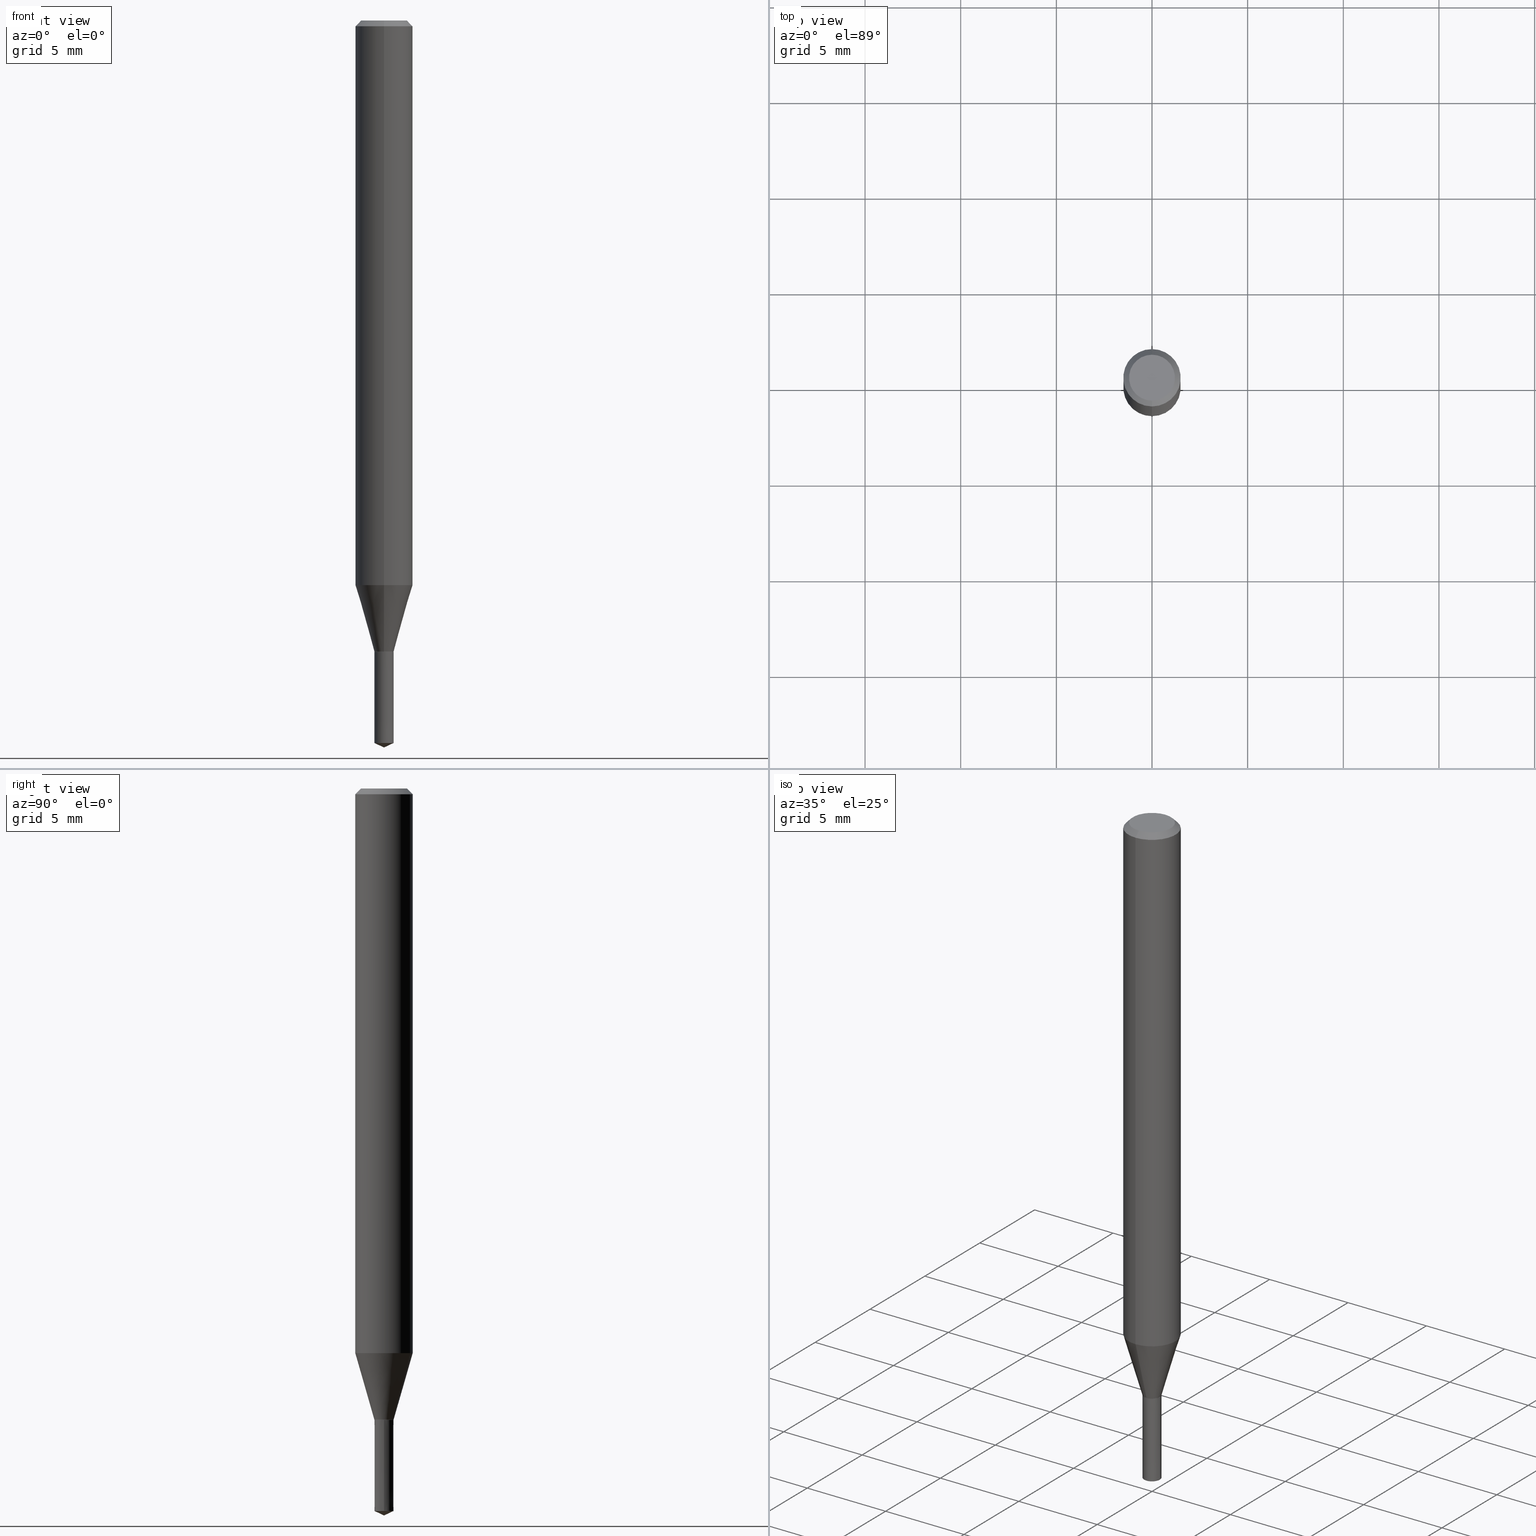
[diagram: canonical four-view strip — front | top / right | iso, engineering-drawing reading convention]
A machine part, canonical four-view strip (front | top / right | iso — engineering-drawing reading convention). The complete STEP part file that produces these views, byte-faithful:
ISO-10303-21;
HEADER;
FILE_DESCRIPTION(('no description'),'unknown implementation level');
FILE_NAME('UTDSX2100-050-Huellk.stp','  ',('CIMSOURCE GmbH'),('CADClick - KiM GmbH - www.kimweb.de'),'unknown preprocess','ACIS','unknown authorization');
FILE_SCHEMA(('automotive_design'));
ENDSEC;
DATA;
#1=MECHANICAL_DESIGN_GEOMETRIC_PRESENTATION_REPRESENTATION(' ',(#14,#15,#16,#17,#18,#19,#20,#21,#22,#23,#24,#25,#26,#27,#28,#29,#30,#31,#32,#33,#34,#35,#36,#37,#38,#39,#40,#41,#42,#43,#44,#45,#46,#47,#48,#49,#50,#51,#52,#53,#54,#55,#56,#57,#58,#59,#60,#61,#62,#63,#64,#65,#66,#67,#68,#69,#70,#71),#10);
#2=PRODUCT_DEFINITION_CONTEXT('',#72,'design');
#3=APPLICATION_PROTOCOL_DEFINITION('INTERNATIONAL STANDARD','automotive_design',1994,#72);
#4=PRODUCT_CATEGORY_RELATIONSHIP('NONE','NONE',#73,#74);
#5=SHAPE_DEFINITION_REPRESENTATION(#75,#76);
#6=PRODUCT_DEFINITION_CONTEXT('',#77,'design');
#7=APPLICATION_PROTOCOL_DEFINITION('INTERNATIONAL STANDARD','automotive_design',1994,#77);
#8=PRODUCT_CATEGORY_RELATIONSHIP('NONE','NONE',#78,#79);
#9=SHAPE_DEFINITION_REPRESENTATION(#80,#81);
#10= (GEOMETRIC_REPRESENTATION_CONTEXT(3)GLOBAL_UNCERTAINTY_ASSIGNED_CONTEXT((#84))GLOBAL_UNIT_ASSIGNED_CONTEXT((#86,#87,#88))REPRESENTATION_CONTEXT('NONE','WORKSPACE'));
#14=STYLED_ITEM('',(#90),#91);
#15=STYLED_ITEM('',(#92),#93);
#16=STYLED_ITEM('',(#94),#95);
#17=STYLED_ITEM('',(#96),#97);
#18=STYLED_ITEM('',(#98),#99);
#19=STYLED_ITEM('',(#100),#101);
#20=STYLED_ITEM('',(#102),#103);
#21=STYLED_ITEM('',(#104),#105);
#22=STYLED_ITEM('',(#106),#107);
#23=STYLED_ITEM('',(#108),#109);
#24=STYLED_ITEM('',(#110),#111);
#25=STYLED_ITEM('',(#112),#113);
#26=STYLED_ITEM('',(#114),#115);
#27=STYLED_ITEM('',(#116),#117);
#28=STYLED_ITEM('',(#118),#119);
#29=STYLED_ITEM('',(#120),#121);
#30=STYLED_ITEM('',(#122),#123);
#31=STYLED_ITEM('',(#124),#125);
#32=STYLED_ITEM('',(#126),#127);
#33=STYLED_ITEM('',(#128),#129);
#34=STYLED_ITEM('',(#130),#131);
#35=STYLED_ITEM('',(#132),#133);
#36=STYLED_ITEM('',(#134),#135);
#37=STYLED_ITEM('',(#136),#137);
#38=STYLED_ITEM('',(#138),#139);
#39=STYLED_ITEM('',(#140),#141);
#40=STYLED_ITEM('',(#142),#143);
#41=STYLED_ITEM('',(#144),#145);
#42=STYLED_ITEM('',(#146),#147);
#43=STYLED_ITEM('',(#148),#149);
#44=STYLED_ITEM('',(#150),#151);
#45=STYLED_ITEM('',(#152),#153);
#46=STYLED_ITEM('',(#154),#155);
#47=STYLED_ITEM('',(#156),#157);
#48=STYLED_ITEM('',(#158),#159);
#49=STYLED_ITEM('',(#160),#161);
#50=STYLED_ITEM('',(#162),#163);
#51=STYLED_ITEM('',(#164),#165);
#52=STYLED_ITEM('',(#166),#167);
#53=STYLED_ITEM('',(#168),#169);
#54=STYLED_ITEM('',(#170),#171);
#55=STYLED_ITEM('',(#172),#173);
#56=STYLED_ITEM('',(#174),#175);
#57=STYLED_ITEM('',(#176),#177);
#58=STYLED_ITEM('',(#178),#179);
#59=STYLED_ITEM('',(#180),#181);
#60=STYLED_ITEM('',(#182),#183);
#61=STYLED_ITEM('',(#184),#185);
#62=STYLED_ITEM('',(#186),#187);
#63=STYLED_ITEM('',(#188),#189);
#64=STYLED_ITEM('',(#190),#191);
#65=STYLED_ITEM('',(#192),#193);
#66=STYLED_ITEM('',(#194),#195);
#67=STYLED_ITEM('',(#196),#197);
#68=STYLED_ITEM('',(#198),#199);
#69=STYLED_ITEM('',(#200),#201);
#70=STYLED_ITEM('',(#202),#203);
#71=STYLED_ITEM('',(#204),#205);
#72=APPLICATION_CONTEXT(' ');
#73=PRODUCT_CATEGORY('part','NONE');
#74=PRODUCT_RELATED_PRODUCT_CATEGORY('detail',' ',(#206));
#75=PRODUCT_DEFINITION_SHAPE('NONE','NONE',#207);
#76=ADVANCED_BREP_SHAPE_REPRESENTATION('1',(#135,#208),#10);
#77=APPLICATION_CONTEXT(' ');
#78=PRODUCT_CATEGORY('part','NONE');
#79=PRODUCT_RELATED_PRODUCT_CATEGORY('detail',' ',(#209));
#80=PRODUCT_DEFINITION_SHAPE('NONE','NONE',#210);
#81=ADVANCED_BREP_SHAPE_REPRESENTATION('2',(#181,#211),#10);
#84=UNCERTAINTY_MEASURE_WITH_UNIT(LENGTH_MEASURE(1.0E-006),#86,'','');
#86= (CONVERSION_BASED_UNIT('MILLIMETRE',#214)LENGTH_UNIT()NAMED_UNIT(#217));
#87= (NAMED_UNIT(#219)PLANE_ANGLE_UNIT()SI_UNIT($,.RADIAN.));
#88= (NAMED_UNIT(#219)SOLID_ANGLE_UNIT()SI_UNIT($,.STERADIAN.));
#90=PRESENTATION_STYLE_ASSIGNMENT((#225));
#91=EDGE_CURVE('',#105,#153,#226,.T.);
#92=PRESENTATION_STYLE_ASSIGNMENT((#227));
#93=EDGE_CURVE('',#203,#155,#228,.T.);
#94=PRESENTATION_STYLE_ASSIGNMENT((#229));
#95=ADVANCED_FACE('',(#230),#231,.T.);
#96=PRESENTATION_STYLE_ASSIGNMENT((#232));
#97=ADVANCED_FACE('',(#233),#234,.T.);
#98=PRESENTATION_STYLE_ASSIGNMENT((#235));
#99=ADVANCED_FACE('',(#236),#237,.T.);
#100=PRESENTATION_STYLE_ASSIGNMENT((#238));
#101=EDGE_CURVE('',#197,#163,#239,.T.);
#102=PRESENTATION_STYLE_ASSIGNMENT((#240));
#103=EDGE_CURVE('',#147,#105,#241,.T.);
#104=PRESENTATION_STYLE_ASSIGNMENT((#242));
#105=VERTEX_POINT('',#243);
#106=PRESENTATION_STYLE_ASSIGNMENT((#244));
#107=ADVANCED_FACE('',(#245),#246,.T.);
#108=PRESENTATION_STYLE_ASSIGNMENT((#247));
#109=VERTEX_POINT('',#248);
#110=PRESENTATION_STYLE_ASSIGNMENT((#249));
#111=ADVANCED_FACE('',(#250),#251,.T.);
#112=PRESENTATION_STYLE_ASSIGNMENT((#252));
#113=ADVANCED_FACE('',(#253),#254,.T.);
#114=PRESENTATION_STYLE_ASSIGNMENT((#255));
#115=ADVANCED_FACE('',(#256),#257,.T.);
#116=PRESENTATION_STYLE_ASSIGNMENT((#258));
#117=EDGE_CURVE('',#197,#185,#259,.T.);
#118=PRESENTATION_STYLE_ASSIGNMENT((#260));
#119=EDGE_CURVE('',#149,#105,#261,.T.);
#120=PRESENTATION_STYLE_ASSIGNMENT((#262));
#121=EDGE_CURVE('',#145,#179,#263,.T.);
#122=PRESENTATION_STYLE_ASSIGNMENT((#264));
#123=ADVANCED_FACE('',(#265),#266,.T.);
#124=PRESENTATION_STYLE_ASSIGNMENT((#267));
#125=ADVANCED_FACE('',(#268),#269,.T.);
#126=PRESENTATION_STYLE_ASSIGNMENT((#270));
#127=EDGE_CURVE('',#149,#109,#271,.T.);
#128=PRESENTATION_STYLE_ASSIGNMENT((#272));
#129=ADVANCED_FACE('',(#273),#274,.T.);
#130=PRESENTATION_STYLE_ASSIGNMENT((#275));
#131=EDGE_CURVE('',#175,#163,#276,.T.);
#132=PRESENTATION_STYLE_ASSIGNMENT((#277));
#133=VERTEX_POINT('',#278);
#134=PRESENTATION_STYLE_ASSIGNMENT((#279));
#135=MANIFOLD_SOLID_BREP('1',#280);
#136=PRESENTATION_STYLE_ASSIGNMENT((#281));
#137=EDGE_CURVE('',#147,#109,#282,.T.);
#138=PRESENTATION_STYLE_ASSIGNMENT((#283));
#139=EDGE_CURVE('',#179,#147,#284,.T.);
#140=PRESENTATION_STYLE_ASSIGNMENT((#285));
#141=EDGE_CURVE('',#161,#149,#286,.T.);
#142=PRESENTATION_STYLE_ASSIGNMENT((#287));
#143=EDGE_CURVE('',#163,#197,#288,.T.);
#144=PRESENTATION_STYLE_ASSIGNMENT((#289));
#145=VERTEX_POINT('',#290);
#146=PRESENTATION_STYLE_ASSIGNMENT((#291));
#147=VERTEX_POINT('',#292);
#148=PRESENTATION_STYLE_ASSIGNMENT((#293));
#149=VERTEX_POINT('',#294);
#150=PRESENTATION_STYLE_ASSIGNMENT((#295));
#151=EDGE_CURVE('',#109,#147,#296,.T.);
#152=PRESENTATION_STYLE_ASSIGNMENT((#297));
#153=VERTEX_POINT('',#298);
#154=PRESENTATION_STYLE_ASSIGNMENT((#299));
#155=VERTEX_POINT('',#300);
#156=PRESENTATION_STYLE_ASSIGNMENT((#301));
#157=EDGE_CURVE('',#175,#185,#302,.T.);
#158=PRESENTATION_STYLE_ASSIGNMENT((#303));
#159=EDGE_CURVE('',#185,#175,#304,.T.);
#160=PRESENTATION_STYLE_ASSIGNMENT((#305));
#161=VERTEX_POINT('',#306);
#162=PRESENTATION_STYLE_ASSIGNMENT((#307));
#163=VERTEX_POINT('',#308);
#164=PRESENTATION_STYLE_ASSIGNMENT((#309));
#165=EDGE_CURVE('',#153,#161,#310,.T.);
#166=PRESENTATION_STYLE_ASSIGNMENT((#311));
#167=ADVANCED_FACE('',(#312),#313,.T.);
#168=PRESENTATION_STYLE_ASSIGNMENT((#314));
#169=EDGE_CURVE('',#163,#133,#315,.T.);
#170=PRESENTATION_STYLE_ASSIGNMENT((#316));
#171=EDGE_CURVE('',#155,#203,#317,.T.);
#172=PRESENTATION_STYLE_ASSIGNMENT((#318));
#173=EDGE_CURVE('',#179,#145,#319,.T.);
#174=PRESENTATION_STYLE_ASSIGNMENT((#320));
#175=VERTEX_POINT('',#321);
#176=PRESENTATION_STYLE_ASSIGNMENT((#322));
#177=ADVANCED_FACE('',(#323),#324,.T.);
#178=PRESENTATION_STYLE_ASSIGNMENT((#325));
#179=VERTEX_POINT('',#326);
#180=PRESENTATION_STYLE_ASSIGNMENT((#327));
#181=MANIFOLD_SOLID_BREP('2',#328);
#182=PRESENTATION_STYLE_ASSIGNMENT((#329));
#183=EDGE_CURVE('',#153,#203,#330,.T.);
#184=PRESENTATION_STYLE_ASSIGNMENT((#331));
#185=VERTEX_POINT('',#332);
#186=PRESENTATION_STYLE_ASSIGNMENT((#333));
#187=EDGE_CURVE('',#133,#197,#334,.T.);
#188=PRESENTATION_STYLE_ASSIGNMENT((#335));
#189=EDGE_CURVE('',#105,#149,#336,.T.);
#190=PRESENTATION_STYLE_ASSIGNMENT((#337));
#191=EDGE_CURVE('',#155,#161,#338,.T.);
#192=PRESENTATION_STYLE_ASSIGNMENT((#339));
#193=EDGE_CURVE('',#161,#153,#340,.T.);
#194=PRESENTATION_STYLE_ASSIGNMENT((#341));
#195=ADVANCED_FACE('',(#342),#343,.T.);
#196=PRESENTATION_STYLE_ASSIGNMENT((#344));
#197=VERTEX_POINT('',#345);
#198=PRESENTATION_STYLE_ASSIGNMENT((#346));
#199=EDGE_CURVE('',#109,#145,#347,.T.);
#200=PRESENTATION_STYLE_ASSIGNMENT((#348));
#201=ADVANCED_FACE('',(#349),#350,.T.);
#202=PRESENTATION_STYLE_ASSIGNMENT((#351));
#203=VERTEX_POINT('',#352);
#204=PRESENTATION_STYLE_ASSIGNMENT((#353));
#205=ADVANCED_FACE('',(#354),#355,.T.);
#206=PRODUCT('1','1','PART-1-DESC',(#356));
#207=PRODUCT_DEFINITION('NONE','NONE',#357,#2);
#208=AXIS2_PLACEMENT_3D('',#358,#359,#360);
#209=PRODUCT('2','2','PART-2-DESC',(#361));
#210=PRODUCT_DEFINITION('NONE','NONE',#362,#6);
#211=AXIS2_PLACEMENT_3D('',#363,#364,#365);
#214=LENGTH_MEASURE_WITH_UNIT(LENGTH_MEASURE(1.0),#366);
#217=DIMENSIONAL_EXPONENTS(1.0,0.0,0.0,0.0,0.0,0.0,0.0);
#219=DIMENSIONAL_EXPONENTS(0.0,0.0,0.0,0.0,0.0,0.0,0.0);
#225=CURVE_STYLE('',#367,POSITIVE_LENGTH_MEASURE(1.0E-006),#368);
#226=LINE('',#369,#370);
#227=CURVE_STYLE('',#371,POSITIVE_LENGTH_MEASURE(1.0E-006),#372);
#228=CIRCLE('',#373,1.2);
#229=SURFACE_STYLE_USAGE(.BOTH.,#374);
#230=FACE_OUTER_BOUND('',#375,.T.);
#231=PLANE('',#376);
#232=SURFACE_STYLE_USAGE(.BOTH.,#377);
#233=FACE_OUTER_BOUND('',#378,.T.);
#234=CONICAL_SURFACE('',#379,1.0,0.279349998205856);
#235=SURFACE_STYLE_USAGE(.BOTH.,#380);
#236=FACE_OUTER_BOUND('',#381,.T.);
#237=CONICAL_SURFACE('',#382,0.25,1.13446401228084);
#238=CURVE_STYLE('',#383,POSITIVE_LENGTH_MEASURE(1.0E-006),#384);
#239=CIRCLE('',#385,0.5);
#240=CURVE_STYLE('',#386,POSITIVE_LENGTH_MEASURE(1.0E-006),#387);
#241=LINE('',#388,#389);
#242=POINT_STYLE(' ',#390,POSITIVE_LENGTH_MEASURE(1.0E-006),#391);
#243=CARTESIAN_POINT('',(1.83690953073357E-016,-1.5,-29.513));
#244=SURFACE_STYLE_USAGE(.BOTH.,#392);
#245=FACE_OUTER_BOUND('',#393,.T.);
#246=CONICAL_SURFACE('',#394,1.0,0.279349998205856);
#247=POINT_STYLE(' ',#395,POSITIVE_LENGTH_MEASURE(1.0E-006),#396);
#248=CARTESIAN_POINT('',(0.0,0.5,-32.9991339745962));
#249=SURFACE_STYLE_USAGE(.BOTH.,#397);
#250=FACE_OUTER_BOUND('',#398,.T.);
#251=CONICAL_SURFACE('',#399,0.5005,0.000209782306721776);
#252=SURFACE_STYLE_USAGE(.BOTH.,#400);
#253=FACE_OUTER_BOUND('',#401,.T.);
#254=PLANE('',#402);
#255=SURFACE_STYLE_USAGE(.BOTH.,#403);
#256=FACE_OUTER_BOUND('',#404,.T.);
#257=CONICAL_SURFACE('',#405,0.25,1.13446401228084);
#258=CURVE_STYLE('',#406,POSITIVE_LENGTH_MEASURE(1.0E-006),#407);
#259=LINE('',#408,#409);
#260=CURVE_STYLE('',#410,POSITIVE_LENGTH_MEASURE(1.0E-006),#411);
#261=CIRCLE('',#412,1.5);
#262=CURVE_STYLE('',#413,POSITIVE_LENGTH_MEASURE(1.0E-006),#414);
#263=CIRCLE('',#415,0.5005);
#264=SURFACE_STYLE_USAGE(.BOTH.,#416);
#265=FACE_OUTER_BOUND('',#417,.T.);
#266=CONICAL_SURFACE('',#418,1.35,0.785398163397447);
#267=SURFACE_STYLE_USAGE(.BOTH.,#419);
#268=FACE_OUTER_BOUND('',#420,.T.);
#269=CYLINDRICAL_SURFACE('',#421,1.5);
#270=CURVE_STYLE('',#422,POSITIVE_LENGTH_MEASURE(1.0E-006),#423);
#271=LINE('',#424,#425);
#272=SURFACE_STYLE_USAGE(.BOTH.,#426);
#273=FACE_OUTER_BOUND('',#427,.T.);
#274=CONICAL_SURFACE('',#428,0.5005,0.000209782306721776);
#275=CURVE_STYLE('',#429,POSITIVE_LENGTH_MEASURE(1.0E-006),#430);
#276=LINE('',#431,#432);
#277=POINT_STYLE(' ',#433,POSITIVE_LENGTH_MEASURE(1.0E-006),#434);
#278=CARTESIAN_POINT('',(0.0,0.0,-38.0));
#279=SURFACE_STYLE_USAGE(.BOTH.,#435);
#280=CLOSED_SHELL('',(#177,#107,#205,#123,#95,#195,#125,#97,#201,#167));
#281=CURVE_STYLE('',#436,POSITIVE_LENGTH_MEASURE(1.0E-006),#437);
#282=CIRCLE('',#438,0.5);
#283=CURVE_STYLE('',#439,POSITIVE_LENGTH_MEASURE(1.0E-006),#440);
#284=LINE('',#441,#442);
#285=CURVE_STYLE('',#443,POSITIVE_LENGTH_MEASURE(1.0E-006),#444);
#286=LINE('',#445,#446);
#287=CURVE_STYLE('',#447,POSITIVE_LENGTH_MEASURE(1.0E-006),#448);
#288=CIRCLE('',#449,0.5);
#289=POINT_STYLE(' ',#450,POSITIVE_LENGTH_MEASURE(1.0E-006),#451);
#290=CARTESIAN_POINT('',(0.0,0.5005,-33.0));
#291=POINT_STYLE(' ',#452,POSITIVE_LENGTH_MEASURE(1.0E-006),#453);
#292=CARTESIAN_POINT('',(6.12303176911189E-017,-0.5,-32.9991339745962));
#293=POINT_STYLE(' ',#454,POSITIVE_LENGTH_MEASURE(1.0E-006),#455);
#294=CARTESIAN_POINT('',(0.0,1.5,-29.513));
#295=CURVE_STYLE('',#456,POSITIVE_LENGTH_MEASURE(1.0E-006),#457);
#296=CIRCLE('',#458,0.5);
#297=POINT_STYLE(' ',#459,POSITIVE_LENGTH_MEASURE(1.0E-006),#460);
#298=CARTESIAN_POINT('',(1.83690953073357E-016,-1.5,-0.300000000000001));
#299=POINT_STYLE(' ',#461,POSITIVE_LENGTH_MEASURE(1.0E-006),#462);
#300=CARTESIAN_POINT('',(0.0,1.2,0.0));
#301=CURVE_STYLE('',#463,POSITIVE_LENGTH_MEASURE(1.0E-006),#464);
#302=CIRCLE('',#465,0.501);
#303=CURVE_STYLE('',#466,POSITIVE_LENGTH_MEASURE(1.0E-006),#467);
#304=CIRCLE('',#468,0.501);
#305=POINT_STYLE(' ',#469,POSITIVE_LENGTH_MEASURE(1.0E-006),#470);
#306=CARTESIAN_POINT('',(0.0,1.5,-0.300000000000001));
#307=POINT_STYLE(' ',#471,POSITIVE_LENGTH_MEASURE(1.0E-006),#472);
#308=CARTESIAN_POINT('',(-0.5,0.0,-37.76684617));
#309=CURVE_STYLE('',#473,POSITIVE_LENGTH_MEASURE(1.0E-006),#474);
#310=CIRCLE('',#475,1.5);
#311=SURFACE_STYLE_USAGE(.BOTH.,#476);
#312=FACE_OUTER_BOUND('',#477,.T.);
#313=PLANE('',#478);
#314=CURVE_STYLE('',#479,POSITIVE_LENGTH_MEASURE(1.0E-006),#480);
#315=LINE('',#481,#482);
#316=CURVE_STYLE('',#483,POSITIVE_LENGTH_MEASURE(1.0E-006),#484);
#317=CIRCLE('',#485,1.2);
#318=CURVE_STYLE('',#486,POSITIVE_LENGTH_MEASURE(1.0E-006),#487);
#319=CIRCLE('',#488,0.5005);
#320=POINT_STYLE(' ',#489,POSITIVE_LENGTH_MEASURE(1.0E-006),#490);
#321=CARTESIAN_POINT('',(-0.501,0.0,-33.0));
#322=SURFACE_STYLE_USAGE(.BOTH.,#491);
#323=FACE_OUTER_BOUND('',#492,.T.);
#324=CONICAL_SURFACE('',#493,0.50025,0.52359877559836);
#325=POINT_STYLE(' ',#494,POSITIVE_LENGTH_MEASURE(1.0E-006),#495);
#326=CARTESIAN_POINT('',(6.129154800881E-017,-0.5005,-33.0));
#327=SURFACE_STYLE_USAGE(.BOTH.,#496);
#328=CLOSED_SHELL('',(#99,#129,#113,#111,#115));
#329=CURVE_STYLE('',#497,POSITIVE_LENGTH_MEASURE(1.0E-006),#498);
#330=LINE('',#499,#500);
#331=POINT_STYLE(' ',#501,POSITIVE_LENGTH_MEASURE(1.0E-006),#502);
#332=CARTESIAN_POINT('',(0.501,6.13527783265011E-017,-33.0));
#333=CURVE_STYLE('',#503,POSITIVE_LENGTH_MEASURE(1.0E-006),#504);
#334=LINE('',#505,#506);
#335=CURVE_STYLE('',#507,POSITIVE_LENGTH_MEASURE(1.0E-006),#508);
#336=CIRCLE('',#509,1.5);
#337=CURVE_STYLE('',#510,POSITIVE_LENGTH_MEASURE(1.0E-006),#511);
#338=LINE('',#512,#513);
#339=CURVE_STYLE('',#514,POSITIVE_LENGTH_MEASURE(1.0E-006),#515);
#340=CIRCLE('',#516,1.5);
#341=SURFACE_STYLE_USAGE(.BOTH.,#517);
#342=FACE_OUTER_BOUND('',#518,.T.);
#343=CONICAL_SURFACE('',#519,1.35,0.785398163397447);
#344=POINT_STYLE(' ',#520,POSITIVE_LENGTH_MEASURE(1.0E-006),#521);
#345=CARTESIAN_POINT('',(0.5,6.12303176911189E-017,-37.76684617));
#346=CURVE_STYLE('',#522,POSITIVE_LENGTH_MEASURE(1.0E-006),#523);
#347=LINE('',#524,#525);
#348=SURFACE_STYLE_USAGE(.BOTH.,#526);
#349=FACE_OUTER_BOUND('',#527,.T.);
#350=CONICAL_SURFACE('',#528,0.50025,0.52359877559836);
#351=POINT_STYLE(' ',#529,POSITIVE_LENGTH_MEASURE(1.0E-006),#530);
#352=CARTESIAN_POINT('',(1.46952762458685E-016,-1.2,0.0));
#353=SURFACE_STYLE_USAGE(.BOTH.,#531);
#354=FACE_OUTER_BOUND('',#532,.T.);
#355=CYLINDRICAL_SURFACE('',#533,1.5);
#356=PRODUCT_CONTEXT('',#72,'mechanical');
#357=PRODUCT_DEFINITION_FORMATION_WITH_SPECIFIED_SOURCE(' ','NONE',#206,.NOT_KNOWN.);
#358=CARTESIAN_POINT('',(0.0,0.0,0.0));
#359=DIRECTION('',(0.0,0.0,1.0));
#360=DIRECTION('',(1.0,0.0,0.0));
#361=PRODUCT_CONTEXT('',#77,'mechanical');
#362=PRODUCT_DEFINITION_FORMATION_WITH_SPECIFIED_SOURCE(' ','NONE',#209,.NOT_KNOWN.);
#363=CARTESIAN_POINT('',(0.0,0.0,0.0));
#364=DIRECTION('',(0.0,0.0,1.0));
#365=DIRECTION('',(1.0,0.0,0.0));
#366= (NAMED_UNIT(#217)LENGTH_UNIT()SI_UNIT(.MILLI.,.METRE.));
#367=DRAUGHTING_PRE_DEFINED_CURVE_FONT('continuous');
#368=COLOUR_RGB('',0.498039215803146,0.498039215803146,0.498039215803146);
#369=CARTESIAN_POINT('',(1.83690953073357E-016,-1.5,-14.9065));
#370=VECTOR('',#535,1.0);
#371=DRAUGHTING_PRE_DEFINED_CURVE_FONT('continuous');
#372=COLOUR_RGB('',0.498039215803146,0.498039215803146,0.498039215803146);
#373=AXIS2_PLACEMENT_3D('',#536,#537,#538);
#374=SURFACE_SIDE_STYLE('',(#539));
#375=EDGE_LOOP('',(#540,#541));
#376=AXIS2_PLACEMENT_3D('',#542,#543,#544);
#377=SURFACE_SIDE_STYLE('',(#545));
#378=EDGE_LOOP('',(#546,#547,#548,#549));
#379=AXIS2_PLACEMENT_3D('',#550,#551,#552);
#380=SURFACE_SIDE_STYLE('',(#553));
#381=EDGE_LOOP('',(#554,#555,#556));
#382=AXIS2_PLACEMENT_3D('',#557,#558,#559);
#383=DRAUGHTING_PRE_DEFINED_CURVE_FONT('continuous');
#384=COLOUR_RGB('',0.800000011920929,0.800000011920929,0.800000011920929);
#385=AXIS2_PLACEMENT_3D('',#560,#561,#562);
#386=DRAUGHTING_PRE_DEFINED_CURVE_FONT('continuous');
#387=COLOUR_RGB('',0.498039215803146,0.498039215803146,0.498039215803146);
#388=CARTESIAN_POINT('',(1.22460635382238E-016,-1.0,-31.2560669872981));
#389=VECTOR('',#563,1.0);
#390=PRE_DEFINED_MARKER('');
#391=COLOUR_RGB('',0.498039215803146,0.498039215803146,0.498039215803146);
#392=SURFACE_SIDE_STYLE('',(#564));
#393=EDGE_LOOP('',(#565,#566,#567,#568));
#394=AXIS2_PLACEMENT_3D('',#569,#570,#571);
#395=PRE_DEFINED_MARKER('');
#396=COLOUR_RGB('',0.498039215803146,0.498039215803146,0.498039215803146);
#397=SURFACE_SIDE_STYLE('',(#572));
#398=EDGE_LOOP('',(#573,#574,#575,#576));
#399=AXIS2_PLACEMENT_3D('',#577,#578,#579);
#400=SURFACE_SIDE_STYLE('',(#580));
#401=EDGE_LOOP('',(#581,#582));
#402=AXIS2_PLACEMENT_3D('',#583,#584,#585);
#403=SURFACE_SIDE_STYLE('',(#586));
#404=EDGE_LOOP('',(#587,#588,#589));
#405=AXIS2_PLACEMENT_3D('',#590,#591,#592);
#406=DRAUGHTING_PRE_DEFINED_CURVE_FONT('continuous');
#407=COLOUR_RGB('',0.800000011920929,0.800000011920929,0.800000011920929);
#408=CARTESIAN_POINT('',(0.5005,6.129154800881E-017,-35.383423085));
#409=VECTOR('',#593,1.0);
#410=DRAUGHTING_PRE_DEFINED_CURVE_FONT('continuous');
#411=COLOUR_RGB('',0.498039215803146,0.498039215803146,0.498039215803146);
#412=AXIS2_PLACEMENT_3D('',#594,#595,#596);
#413=DRAUGHTING_PRE_DEFINED_CURVE_FONT('continuous');
#414=COLOUR_RGB('',0.498039215803146,0.498039215803146,0.498039215803146);
#415=AXIS2_PLACEMENT_3D('',#597,#598,#599);
#416=SURFACE_SIDE_STYLE('',(#600));
#417=EDGE_LOOP('',(#601,#602,#603,#604));
#418=AXIS2_PLACEMENT_3D('',#605,#606,#607);
#419=SURFACE_SIDE_STYLE('',(#608));
#420=EDGE_LOOP('',(#609,#610,#611,#612));
#421=AXIS2_PLACEMENT_3D('',#613,#614,#615);
#422=DRAUGHTING_PRE_DEFINED_CURVE_FONT('continuous');
#423=COLOUR_RGB('',0.498039215803146,0.498039215803146,0.498039215803146);
#424=CARTESIAN_POINT('',(-1.22460635382238E-016,1.0,-31.2560669872981));
#425=VECTOR('',#616,1.0);
#426=SURFACE_SIDE_STYLE('',(#617));
#427=EDGE_LOOP('',(#618,#619,#620,#621));
#428=AXIS2_PLACEMENT_3D('',#622,#623,#624);
#429=DRAUGHTING_PRE_DEFINED_CURVE_FONT('continuous');
#430=COLOUR_RGB('',0.800000011920929,0.800000011920929,0.800000011920929);
#431=CARTESIAN_POINT('',(-0.5005,-6.129154800881E-017,-35.383423085));
#432=VECTOR('',#625,1.0);
#433=PRE_DEFINED_MARKER('');
#434=COLOUR_RGB('',0.800000011920929,0.800000011920929,0.800000011920929);
#435=SURFACE_SIDE_STYLE('',(#626));
#436=DRAUGHTING_PRE_DEFINED_CURVE_FONT('continuous');
#437=COLOUR_RGB('',0.498039215803146,0.498039215803146,0.498039215803146);
#438=AXIS2_PLACEMENT_3D('',#627,#628,#629);
#439=DRAUGHTING_PRE_DEFINED_CURVE_FONT('continuous');
#440=COLOUR_RGB('',0.498039215803146,0.498039215803146,0.498039215803146);
#441=CARTESIAN_POINT('',(6.12609328499644E-017,-0.50025,-32.9995669872981));
#442=VECTOR('',#630,1.0);
#443=DRAUGHTING_PRE_DEFINED_CURVE_FONT('continuous');
#444=COLOUR_RGB('',0.498039215803146,0.498039215803146,0.498039215803146);
#445=CARTESIAN_POINT('',(-1.83690953073357E-016,1.5,-14.9065));
#446=VECTOR('',#631,1.0);
#447=DRAUGHTING_PRE_DEFINED_CURVE_FONT('continuous');
#448=COLOUR_RGB('',0.800000011920929,0.800000011920929,0.800000011920929);
#449=AXIS2_PLACEMENT_3D('',#632,#633,#634);
#450=PRE_DEFINED_MARKER('');
#451=COLOUR_RGB('',0.498039215803146,0.498039215803146,0.498039215803146);
#452=PRE_DEFINED_MARKER('');
#453=COLOUR_RGB('',0.498039215803146,0.498039215803146,0.498039215803146);
#454=PRE_DEFINED_MARKER('');
#455=COLOUR_RGB('',0.498039215803146,0.498039215803146,0.498039215803146);
#456=DRAUGHTING_PRE_DEFINED_CURVE_FONT('continuous');
#457=COLOUR_RGB('',0.498039215803146,0.498039215803146,0.498039215803146);
#458=AXIS2_PLACEMENT_3D('',#635,#636,#637);
#459=PRE_DEFINED_MARKER('');
#460=COLOUR_RGB('',0.498039215803146,0.498039215803146,0.498039215803146);
#461=PRE_DEFINED_MARKER('');
#462=COLOUR_RGB('',0.498039215803146,0.498039215803146,0.498039215803146);
#463=DRAUGHTING_PRE_DEFINED_CURVE_FONT('continuous');
#464=COLOUR_RGB('',0.800000011920929,0.800000011920929,0.800000011920929);
#465=AXIS2_PLACEMENT_3D('',#638,#639,#640);
#466=DRAUGHTING_PRE_DEFINED_CURVE_FONT('continuous');
#467=COLOUR_RGB('',0.800000011920929,0.800000011920929,0.800000011920929);
#468=AXIS2_PLACEMENT_3D('',#641,#642,#643);
#469=PRE_DEFINED_MARKER('');
#470=COLOUR_RGB('',0.498039215803146,0.498039215803146,0.498039215803146);
#471=PRE_DEFINED_MARKER('');
#472=COLOUR_RGB('',0.800000011920929,0.800000011920929,0.800000011920929);
#473=DRAUGHTING_PRE_DEFINED_CURVE_FONT('continuous');
#474=COLOUR_RGB('',0.498039215803146,0.498039215803146,0.498039215803146);
#475=AXIS2_PLACEMENT_3D('',#644,#645,#646);
#476=SURFACE_SIDE_STYLE('',(#647));
#477=EDGE_LOOP('',(#648,#649));
#478=AXIS2_PLACEMENT_3D('',#650,#651,#652);
#479=DRAUGHTING_PRE_DEFINED_CURVE_FONT('continuous');
#480=COLOUR_RGB('',0.800000011920929,0.800000011920929,0.800000011920929);
#481=CARTESIAN_POINT('',(-0.25,-3.06151588455594E-017,-37.883423085));
#482=VECTOR('',#653,1.0);
#483=DRAUGHTING_PRE_DEFINED_CURVE_FONT('continuous');
#484=COLOUR_RGB('',0.498039215803146,0.498039215803146,0.498039215803146);
#485=AXIS2_PLACEMENT_3D('',#654,#655,#656);
#486=DRAUGHTING_PRE_DEFINED_CURVE_FONT('continuous');
#487=COLOUR_RGB('',0.498039215803146,0.498039215803146,0.498039215803146);
#488=AXIS2_PLACEMENT_3D('',#657,#658,#659);
#489=PRE_DEFINED_MARKER('');
#490=COLOUR_RGB('',0.800000011920929,0.800000011920929,0.800000011920929);
#491=SURFACE_SIDE_STYLE('',(#660));
#492=EDGE_LOOP('',(#661,#662,#663,#664));
#493=AXIS2_PLACEMENT_3D('',#665,#666,#667);
#494=PRE_DEFINED_MARKER('');
#495=COLOUR_RGB('',0.498039215803146,0.498039215803146,0.498039215803146);
#496=SURFACE_SIDE_STYLE('',(#668));
#497=DRAUGHTING_PRE_DEFINED_CURVE_FONT('continuous');
#498=COLOUR_RGB('',0.498039215803146,0.498039215803146,0.498039215803146);
#499=CARTESIAN_POINT('',(1.65321857766021E-016,-1.35,-0.150000000000002));
#500=VECTOR('',#669,1.0);
#501=PRE_DEFINED_MARKER('');
#502=COLOUR_RGB('',0.800000011920929,0.800000011920929,0.800000011920929);
#503=DRAUGHTING_PRE_DEFINED_CURVE_FONT('continuous');
#504=COLOUR_RGB('',0.800000011920929,0.800000011920929,0.800000011920929);
#505=CARTESIAN_POINT('',(0.25,3.06151588455594E-017,-37.883423085));
#506=VECTOR('',#670,1.0);
#507=DRAUGHTING_PRE_DEFINED_CURVE_FONT('continuous');
#508=COLOUR_RGB('',0.498039215803146,0.498039215803146,0.498039215803146);
#509=AXIS2_PLACEMENT_3D('',#671,#672,#673);
#510=DRAUGHTING_PRE_DEFINED_CURVE_FONT('continuous');
#511=COLOUR_RGB('',0.498039215803146,0.498039215803146,0.498039215803146);
#512=CARTESIAN_POINT('',(-1.65321857766021E-016,1.35,-0.150000000000002));
#513=VECTOR('',#674,1.0);
#514=DRAUGHTING_PRE_DEFINED_CURVE_FONT('continuous');
#515=COLOUR_RGB('',0.498039215803146,0.498039215803146,0.498039215803146);
#516=AXIS2_PLACEMENT_3D('',#675,#676,#677);
#517=SURFACE_SIDE_STYLE('',(#678));
#518=EDGE_LOOP('',(#679,#680,#681,#682));
#519=AXIS2_PLACEMENT_3D('',#683,#684,#685);
#520=PRE_DEFINED_MARKER('');
#521=COLOUR_RGB('',0.800000011920929,0.800000011920929,0.800000011920929);
#522=DRAUGHTING_PRE_DEFINED_CURVE_FONT('continuous');
#523=COLOUR_RGB('',0.498039215803146,0.498039215803146,0.498039215803146);
#524=CARTESIAN_POINT('',(-6.12609328499644E-017,0.50025,-32.9995669872981));
#525=VECTOR('',#686,1.0);
#526=SURFACE_SIDE_STYLE('',(#687));
#527=EDGE_LOOP('',(#688,#689,#690,#691));
#528=AXIS2_PLACEMENT_3D('',#692,#693,#694);
#529=PRE_DEFINED_MARKER('');
#530=COLOUR_RGB('',0.498039215803146,0.498039215803146,0.498039215803146);
#531=SURFACE_SIDE_STYLE('',(#695));
#532=EDGE_LOOP('',(#696,#697,#698,#699));
#533=AXIS2_PLACEMENT_3D('',#700,#701,#702);
#535=DIRECTION('',(-0.0,-0.0,1.0));
#536=CARTESIAN_POINT('',(0.0,0.0,0.0));
#537=DIRECTION('',(0.0,0.0,-1.0));
#538=DIRECTION('',(0.0,1.0,0.0));
#539=SURFACE_STYLE_FILL_AREA(#703);
#540=ORIENTED_EDGE('',*,*,#171,.F.);
#541=ORIENTED_EDGE('',*,*,#93,.F.);
#542=CARTESIAN_POINT('',(0.0,0.6,0.0));
#543=DIRECTION('',(-0.0,0.0,1.0));
#544=DIRECTION('',(0.0,-1.0,0.0));
#545=SURFACE_STYLE_FILL_AREA(#704);
#546=ORIENTED_EDGE('',*,*,#127,.T.);
#547=ORIENTED_EDGE('',*,*,#137,.F.);
#548=ORIENTED_EDGE('',*,*,#103,.T.);
#549=ORIENTED_EDGE('',*,*,#189,.T.);
#550=CARTESIAN_POINT('',(0.0,0.0,-31.2560669872981));
#551=DIRECTION('',(-0.0,-0.0,1.0));
#552=DIRECTION('',(0.0,1.0,0.0));
#553=SURFACE_STYLE_FILL_AREA(#705);
#554=ORIENTED_EDGE('',*,*,#187,.F.);
#555=ORIENTED_EDGE('',*,*,#169,.F.);
#556=ORIENTED_EDGE('',*,*,#143,.T.);
#557=CARTESIAN_POINT('',(0.0,0.0,-37.883423085));
#558=DIRECTION('',(-0.0,-0.0,1.0));
#559=DIRECTION('',(-1.0,0.0,0.0));
#560=CARTESIAN_POINT('',(0.0,0.0,-37.76684617));
#561=DIRECTION('',(0.0,0.0,-1.0));
#562=DIRECTION('',(-1.0,0.0,0.0));
#563=DIRECTION('',(3.37661815108076E-017,-0.275730902468478,0.961234866941435));
#564=SURFACE_STYLE_FILL_AREA(#706);
#565=ORIENTED_EDGE('',*,*,#127,.F.);
#566=ORIENTED_EDGE('',*,*,#119,.T.);
#567=ORIENTED_EDGE('',*,*,#103,.F.);
#568=ORIENTED_EDGE('',*,*,#151,.F.);
#569=CARTESIAN_POINT('',(0.0,0.0,-31.2560669872981));
#570=DIRECTION('',(-0.0,-0.0,1.0));
#571=DIRECTION('',(0.0,1.0,0.0));
#572=SURFACE_STYLE_FILL_AREA(#707);
#573=ORIENTED_EDGE('',*,*,#131,.T.);
#574=ORIENTED_EDGE('',*,*,#101,.F.);
#575=ORIENTED_EDGE('',*,*,#117,.T.);
#576=ORIENTED_EDGE('',*,*,#159,.T.);
#577=CARTESIAN_POINT('',(0.0,0.0,-35.383423085));
#578=DIRECTION('',(-0.0,-0.0,1.0));
#579=DIRECTION('',(-1.0,0.0,0.0));
#580=SURFACE_STYLE_FILL_AREA(#708);
#581=ORIENTED_EDGE('',*,*,#157,.F.);
#582=ORIENTED_EDGE('',*,*,#159,.F.);
#583=CARTESIAN_POINT('',(-0.2505,0.0,-33.0));
#584=DIRECTION('',(0.0,0.0,1.0));
#585=DIRECTION('',(1.0,0.0,0.0));
#586=SURFACE_STYLE_FILL_AREA(#709);
#587=ORIENTED_EDGE('',*,*,#187,.T.);
#588=ORIENTED_EDGE('',*,*,#101,.T.);
#589=ORIENTED_EDGE('',*,*,#169,.T.);
#590=CARTESIAN_POINT('',(0.0,0.0,-37.883423085));
#591=DIRECTION('',(-0.0,-0.0,1.0));
#592=DIRECTION('',(-1.0,0.0,0.0));
#593=DIRECTION('',(0.000209782305183071,2.56900743846694E-020,0.999999977995692));
#594=CARTESIAN_POINT('',(0.0,0.0,-29.513));
#595=DIRECTION('',(0.0,0.0,-1.0));
#596=DIRECTION('',(0.0,1.0,0.0));
#597=CARTESIAN_POINT('',(0.0,0.0,-33.0));
#598=DIRECTION('',(0.0,0.0,-1.0));
#599=DIRECTION('',(0.0,1.0,0.0));
#600=SURFACE_STYLE_FILL_AREA(#710);
#601=ORIENTED_EDGE('',*,*,#191,.F.);
#602=ORIENTED_EDGE('',*,*,#171,.T.);
#603=ORIENTED_EDGE('',*,*,#183,.F.);
#604=ORIENTED_EDGE('',*,*,#193,.F.);
#605=CARTESIAN_POINT('',(0.0,0.0,-0.150000000000002));
#606=DIRECTION('',(0.0,-0.0,-1.0));
#607=DIRECTION('',(0.0,1.0,0.0));
#608=SURFACE_STYLE_FILL_AREA(#711);
#609=ORIENTED_EDGE('',*,*,#141,.T.);
#610=ORIENTED_EDGE('',*,*,#189,.F.);
#611=ORIENTED_EDGE('',*,*,#91,.T.);
#612=ORIENTED_EDGE('',*,*,#165,.T.);
#613=CARTESIAN_POINT('',(0.0,0.0,-14.9065));
#614=DIRECTION('',(-0.0,-0.0,1.0));
#615=DIRECTION('',(0.0,1.0,0.0));
#616=DIRECTION('',(3.37661815108076E-017,-0.275730902468478,-0.961234866941435));
#617=SURFACE_STYLE_FILL_AREA(#712);
#618=ORIENTED_EDGE('',*,*,#131,.F.);
#619=ORIENTED_EDGE('',*,*,#157,.T.);
#620=ORIENTED_EDGE('',*,*,#117,.F.);
#621=ORIENTED_EDGE('',*,*,#143,.F.);
#622=CARTESIAN_POINT('',(0.0,0.0,-35.383423085));
#623=DIRECTION('',(-0.0,-0.0,1.0));
#624=DIRECTION('',(-1.0,0.0,0.0));
#625=DIRECTION('',(0.000209782305183071,2.56900743846694E-020,-0.999999977995692));
#626=SURFACE_STYLE_FILL_AREA(#713);
#627=CARTESIAN_POINT('',(0.0,0.0,-32.9991339745962));
#628=DIRECTION('',(0.0,0.0,-1.0));
#629=DIRECTION('',(0.0,1.0,0.0));
#630=DIRECTION('',(-6.12303176911254E-017,0.500000000000053,0.866025403784408));
#631=DIRECTION('',(0.0,0.0,-1.0));
#632=CARTESIAN_POINT('',(0.0,0.0,-37.76684617));
#633=DIRECTION('',(0.0,0.0,-1.0));
#634=DIRECTION('',(-1.0,0.0,0.0));
#635=CARTESIAN_POINT('',(0.0,0.0,-32.9991339745962));
#636=DIRECTION('',(0.0,0.0,-1.0));
#637=DIRECTION('',(0.0,1.0,0.0));
#638=CARTESIAN_POINT('',(0.0,0.0,-33.0));
#639=DIRECTION('',(0.0,0.0,-1.0));
#640=DIRECTION('',(-1.0,0.0,0.0));
#641=CARTESIAN_POINT('',(0.0,0.0,-33.0));
#642=DIRECTION('',(0.0,0.0,-1.0));
#643=DIRECTION('',(-1.0,0.0,0.0));
#644=CARTESIAN_POINT('',(0.0,0.0,-0.300000000000001));
#645=DIRECTION('',(0.0,0.0,-1.0));
#646=DIRECTION('',(0.0,1.0,0.0));
#647=SURFACE_STYLE_FILL_AREA(#714);
#648=ORIENTED_EDGE('',*,*,#121,.T.);
#649=ORIENTED_EDGE('',*,*,#173,.T.);
#650=CARTESIAN_POINT('',(0.0,0.25025,-33.0));
#651=DIRECTION('',(0.0,0.0,-1.0));
#652=DIRECTION('',(0.0,1.0,0.0));
#653=DIRECTION('',(0.906307786396183,1.10987027373946E-016,-0.422618263114184));
#654=CARTESIAN_POINT('',(0.0,0.0,0.0));
#655=DIRECTION('',(0.0,0.0,-1.0));
#656=DIRECTION('',(0.0,1.0,0.0));
#657=CARTESIAN_POINT('',(0.0,0.0,-33.0));
#658=DIRECTION('',(0.0,0.0,-1.0));
#659=DIRECTION('',(0.0,1.0,0.0));
#660=SURFACE_STYLE_FILL_AREA(#715);
#661=ORIENTED_EDGE('',*,*,#199,.F.);
#662=ORIENTED_EDGE('',*,*,#151,.T.);
#663=ORIENTED_EDGE('',*,*,#139,.F.);
#664=ORIENTED_EDGE('',*,*,#121,.F.);
#665=CARTESIAN_POINT('',(0.0,0.0,-32.9995669872981));
#666=DIRECTION('',(0.0,-0.0,-1.0));
#667=DIRECTION('',(0.0,1.0,0.0));
#668=SURFACE_STYLE_FILL_AREA(#716);
#669=DIRECTION('',(-8.65927457071934E-017,0.707106781186546,0.707106781186549));
#670=DIRECTION('',(0.906307786396183,1.10987027373946E-016,0.422618263114184));
#671=CARTESIAN_POINT('',(0.0,0.0,-29.513));
#672=DIRECTION('',(0.0,0.0,-1.0));
#673=DIRECTION('',(0.0,1.0,0.0));
#674=DIRECTION('',(-8.65927457071934E-017,0.707106781186546,-0.707106781186549));
#675=CARTESIAN_POINT('',(0.0,0.0,-0.300000000000001));
#676=DIRECTION('',(0.0,0.0,-1.0));
#677=DIRECTION('',(0.0,1.0,0.0));
#678=SURFACE_STYLE_FILL_AREA(#717);
#679=ORIENTED_EDGE('',*,*,#191,.T.);
#680=ORIENTED_EDGE('',*,*,#165,.F.);
#681=ORIENTED_EDGE('',*,*,#183,.T.);
#682=ORIENTED_EDGE('',*,*,#93,.T.);
#683=CARTESIAN_POINT('',(0.0,0.0,-0.150000000000002));
#684=DIRECTION('',(0.0,-0.0,-1.0));
#685=DIRECTION('',(0.0,1.0,0.0));
#686=DIRECTION('',(-6.12303176911254E-017,0.500000000000053,-0.866025403784408));
#687=SURFACE_STYLE_FILL_AREA(#718);
#688=ORIENTED_EDGE('',*,*,#199,.T.);
#689=ORIENTED_EDGE('',*,*,#173,.F.);
#690=ORIENTED_EDGE('',*,*,#139,.T.);
#691=ORIENTED_EDGE('',*,*,#137,.T.);
#692=CARTESIAN_POINT('',(0.0,0.0,-32.9995669872981));
#693=DIRECTION('',(0.0,-0.0,-1.0));
#694=DIRECTION('',(0.0,1.0,0.0));
#695=SURFACE_STYLE_FILL_AREA(#719);
#696=ORIENTED_EDGE('',*,*,#141,.F.);
#697=ORIENTED_EDGE('',*,*,#193,.T.);
#698=ORIENTED_EDGE('',*,*,#91,.F.);
#699=ORIENTED_EDGE('',*,*,#119,.F.);
#700=CARTESIAN_POINT('',(0.0,0.0,-14.9065));
#701=DIRECTION('',(-0.0,-0.0,1.0));
#702=DIRECTION('',(0.0,1.0,0.0));
#703=FILL_AREA_STYLE('',(#720));
#704=FILL_AREA_STYLE('',(#721));
#705=FILL_AREA_STYLE('',(#722));
#706=FILL_AREA_STYLE('',(#723));
#707=FILL_AREA_STYLE('',(#724));
#708=FILL_AREA_STYLE('',(#725));
#709=FILL_AREA_STYLE('',(#726));
#710=FILL_AREA_STYLE('',(#727));
#711=FILL_AREA_STYLE('',(#728));
#712=FILL_AREA_STYLE('',(#729));
#713=FILL_AREA_STYLE('',(#730));
#714=FILL_AREA_STYLE('',(#731));
#715=FILL_AREA_STYLE('',(#732));
#716=FILL_AREA_STYLE('',(#733));
#717=FILL_AREA_STYLE('',(#734));
#718=FILL_AREA_STYLE('',(#735));
#719=FILL_AREA_STYLE('',(#736));
#720=FILL_AREA_STYLE_COLOUR('',#737);
#721=FILL_AREA_STYLE_COLOUR('',#738);
#722=FILL_AREA_STYLE_COLOUR('',#739);
#723=FILL_AREA_STYLE_COLOUR('',#740);
#724=FILL_AREA_STYLE_COLOUR('',#741);
#725=FILL_AREA_STYLE_COLOUR('',#742);
#726=FILL_AREA_STYLE_COLOUR('',#743);
#727=FILL_AREA_STYLE_COLOUR('',#744);
#728=FILL_AREA_STYLE_COLOUR('',#745);
#729=FILL_AREA_STYLE_COLOUR('',#746);
#730=FILL_AREA_STYLE_COLOUR('',#747);
#731=FILL_AREA_STYLE_COLOUR('',#748);
#732=FILL_AREA_STYLE_COLOUR('',#749);
#733=FILL_AREA_STYLE_COLOUR('',#750);
#734=FILL_AREA_STYLE_COLOUR('',#751);
#735=FILL_AREA_STYLE_COLOUR('',#752);
#736=FILL_AREA_STYLE_COLOUR('',#753);
#737=COLOUR_RGB('',0.498039215803146,0.498039215803146,0.498039215803146);
#738=COLOUR_RGB('',0.498039215803146,0.498039215803146,0.498039215803146);
#739=COLOUR_RGB('',0.800000011920929,0.800000011920929,0.800000011920929);
#740=COLOUR_RGB('',0.498039215803146,0.498039215803146,0.498039215803146);
#741=COLOUR_RGB('',0.800000011920929,0.800000011920929,0.800000011920929);
#742=COLOUR_RGB('',0.800000011920929,0.800000011920929,0.800000011920929);
#743=COLOUR_RGB('',0.800000011920929,0.800000011920929,0.800000011920929);
#744=COLOUR_RGB('',0.498039215803146,0.498039215803146,0.498039215803146);
#745=COLOUR_RGB('',0.498039215803146,0.498039215803146,0.498039215803146);
#746=COLOUR_RGB('',0.800000011920929,0.800000011920929,0.800000011920929);
#747=COLOUR_RGB('',0.498039215803146,0.498039215803146,0.498039215803146);
#748=COLOUR_RGB('',0.498039215803146,0.498039215803146,0.498039215803146);
#749=COLOUR_RGB('',0.498039215803146,0.498039215803146,0.498039215803146);
#750=COLOUR_RGB('',0.800000011920929,0.800000011920929,0.800000011920929);
#751=COLOUR_RGB('',0.498039215803146,0.498039215803146,0.498039215803146);
#752=COLOUR_RGB('',0.498039215803146,0.498039215803146,0.498039215803146);
#753=COLOUR_RGB('',0.498039215803146,0.498039215803146,0.498039215803146);
#754=AXIS2_PLACEMENT_3D('PCS',#755,#756,#757);
#755=CARTESIAN_POINT('',(0.0,0.0,0.0));
#756=DIRECTION('',(0.0,0.0,1.0));
#757=DIRECTION('',(1.0,0.0,0.0));
#758=AXIS2_PLACEMENT_3D('CIP',#759,#760,#761);
#759=CARTESIAN_POINT('',(0.0,0.0,-38.0));
#760=DIRECTION('',(0.0,0.0,1.0));
#761=DIRECTION('',(1.0,0.0,0.0));
#762=AXIS2_PLACEMENT_3D('CRP',#763,#764,#765);
#763=CARTESIAN_POINT('',(-0.5,0.0,-37.7668));
#764=DIRECTION('',(0.0,0.0,1.0));
#765=DIRECTION('',(1.0,0.0,0.0));
#766=AXIS2_PLACEMENT_3D('MCS',#767,#768,#769);
#767=CARTESIAN_POINT('',(0.0,0.0,-29.513));
#768=DIRECTION('',(0.0,0.0,1.0));
#769=DIRECTION('',(1.0,0.0,0.0));
#770=CONSTRUCTIVE_GEOMETRY_REPRESENTATION_RELATIONSHIP('coordinate systems',$,#76,#771);
#771=CONSTRUCTIVE_GEOMETRY_REPRESENTATION('coordinate systems',(#754,#758,#762,#766),#10);
ENDSEC;
END-ISO-10303-21;
